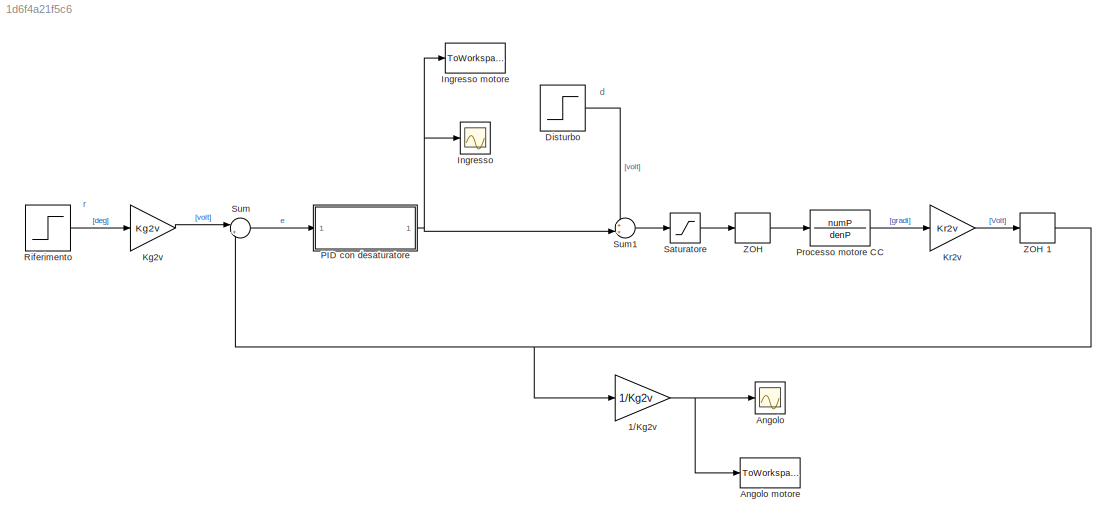
MODEL slx_1d6f4a21f5c6
KIND model
BLOCK [Gain] 1//Kg2v 
  Gain = 1/Kg2v
  OutDataTypeStr = Inherit: Inherit via internal rule
  ParamDataTypeStr = Inherit: Inherit via internal rule
  SaturateOnIntegerOverflow = off
BLOCK [Scope] Angolo
  DataFormat = StructureWithTime
  Floating = off
  LimitDataPoints = off
  NumInputPorts = 1
  Ports = [1]
  SampleTime = 0
  SaveName = ScopeData1
  ShowLegends = off
BLOCK [ToWorkspace] Angolo motore
  FixptAsFi = on
  MaxDataPoints = inf
  Ports = [1]
  SampleTime = -1
  VariableName = angolo_motore_PID
BLOCK [Step] Disturbo
  After = d
  SampleTime = 0
BLOCK [Scope] Ingresso
  DataFormat = StructureWithTime
  Floating = off
  NumInputPorts = 1
  Ports = [1]
  SampleTime = 0
  ShowLegends = off
BLOCK [ToWorkspace] Ingresso motore
  FixptAsFi = on
  MaxDataPoints = inf
  Ports = [1]
  SampleTime = -1
  VariableName = ingresso_motore
BLOCK [Gain] Kg2v
  Gain = Kg2v
  OutDataTypeStr = Inherit: Inherit via internal rule
  ParamDataTypeStr = Inherit: Inherit via internal rule
  SaturateOnIntegerOverflow = off
BLOCK [Gain] Kr2v
  Gain = Kr2v
  OutDataTypeStr = Inherit: Inherit via internal rule
  ParamDataTypeStr = Inherit: Inherit via internal rule
  SaturateOnIntegerOverflow = off
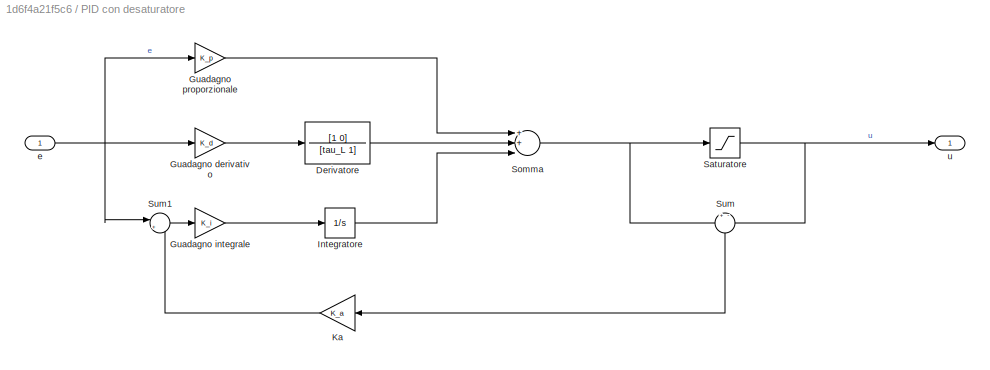
BLOCK [SubSystem] PID con desaturatore
  Ports = [1, 1]
  RequestExecContextInheritance = off
BLOCK [TransferFcn] PID con desaturatore/Derivatore
  Denominator = [tau_L 1]
  Numerator = [1 0]
BLOCK [Gain] PID con desaturatore/Guadagno derivativo
  Gain = K_d
  OutDataTypeStr = Inherit: Inherit via internal rule
  ParamDataTypeStr = Inherit: Inherit via internal rule
  SaturateOnIntegerOverflow = off
BLOCK [Gain] PID con desaturatore/Guadagno integrale
  Gain = K_i
  OutDataTypeStr = Inherit: Inherit via internal rule
  ParamDataTypeStr = Inherit: Inherit via internal rule
  SaturateOnIntegerOverflow = off
BLOCK [Gain] PID con desaturatore/Guadagno proporzionale
  Gain = K_p
  OutDataTypeStr = Inherit: Inherit via internal rule
  ParamDataTypeStr = Inherit: Inherit via internal rule
  SaturateOnIntegerOverflow = off
BLOCK [Integrator] PID con desaturatore/Integratore
  Ports = [1, 1]
BLOCK [Gain] PID con desaturatore/Ka
  Gain = K_a
  OutDataTypeStr = Inherit: Inherit via internal rule
  ParamDataTypeStr = Inherit: Inherit via internal rule
  SaturateOnIntegerOverflow = off
BLOCK [Saturate] PID con desaturatore/Saturatore 
  InputPortMap = u0
  LowerLimit = -5
  Ports = [1, 1]
  UpperLimit = 5
BLOCK [Sum] PID con desaturatore/Somma
  Inputs = 3
  Ports = [3, 1]
BLOCK [Sum] PID con desaturatore/Sum
  IconShape = round
  InputSameDT = off
  Inputs = +-
  OutDataTypeStr = Inherit: Inherit via internal rule
  Ports = [2, 1]
  SaturateOnIntegerOverflow = off
BLOCK [Sum] PID con desaturatore/Sum1
  IconShape = round
  InputSameDT = off
  Inputs = |+-
  OutDataTypeStr = Inherit: Inherit via internal rule
  Ports = [2, 1]
  SaturateOnIntegerOverflow = off
BLOCK [Inport] PID con desaturatore/e
  IconDisplay = Port number
BLOCK [Outport] PID con desaturatore/u
  IconDisplay = Port number
BLOCK [TransferFcn] Processo motore CC
  Denominator = denP
  Numerator = numP
BLOCK [Step] Riferimento
  After = r
  SampleTime = 0
BLOCK [Saturate] Saturatore 
  InputPortMap = u0
  LowerLimit = -5
  Ports = [1, 1]
  UpperLimit = 5
BLOCK [Sum] Sum
  IconShape = round
  InputSameDT = off
  Inputs = |+-
  OutDataTypeStr = Inherit: Inherit via internal rule
  Ports = [2, 1]
  SaturateOnIntegerOverflow = off
BLOCK [Sum] Sum1
  IconShape = round
  InputSameDT = off
  Inputs = ++|
  OutDataTypeStr = Inherit: Inherit via internal rule
  Ports = [2, 1]
  SaturateOnIntegerOverflow = off
BLOCK [ZeroOrderHold] ZOH
  SampleTime = 0.001
BLOCK [ZeroOrderHold] ZOH 1 
  SampleTime = 0.001
ANNOTATION (root): d
ANNOTATION (root): r
NET 1//Kg2v :1 -> Angolo motore:1, Angolo:1
LINE Disturbo:1 -> Sum1:1
LINE Kg2v:1 -> Sum:1
LINE Kr2v:1 -> ZOH 1 :1
LINE PID con desaturatore/Derivatore:1 -> PID con desaturatore/Somma:2
LINE PID con desaturatore/Guadagno derivativo:1 -> PID con desaturatore/Derivatore:1
LINE PID con desaturatore/Guadagno integrale:1 -> PID con desaturatore/Integratore:1
LINE PID con desaturatore/Guadagno proporzionale:1 -> PID con desaturatore/Somma:1
LINE PID con desaturatore/Integratore:1 -> PID con desaturatore/Somma:3
LINE PID con desaturatore/Ka:1 -> PID con desaturatore/Sum1:2
NET PID con desaturatore/Saturatore :1 -> PID con desaturatore/Sum:2, PID con desaturatore/u:1
NET PID con desaturatore/Somma:1 -> PID con desaturatore/Saturatore :1, PID con desaturatore/Sum:1
LINE PID con desaturatore/Sum1:1 -> PID con desaturatore/Guadagno integrale:1
LINE PID con desaturatore/Sum:1 -> PID con desaturatore/Ka:1
NET PID con desaturatore/e:1 -> PID con desaturatore/Guadagno derivativo:1, PID con desaturatore/Guadagno proporzionale:1, PID con desaturatore/Sum1:1
NET PID con desaturatore:1 -> Ingresso motore:1, Ingresso:1, Sum1:2
LINE Processo motore CC:1 -> Kr2v:1
LINE Riferimento:1 -> Kg2v:1
LINE Saturatore :1 -> ZOH:1
LINE Sum1:1 -> Saturatore :1
LINE Sum:1 -> PID con desaturatore:1
NET ZOH 1 :1 -> 1//Kg2v :1, Sum:2
LINE ZOH:1 -> Processo motore CC:1
note: NET lines group one-source signal fan-out (src -> all destinations, sorted); 1:1 wires keep LINE
